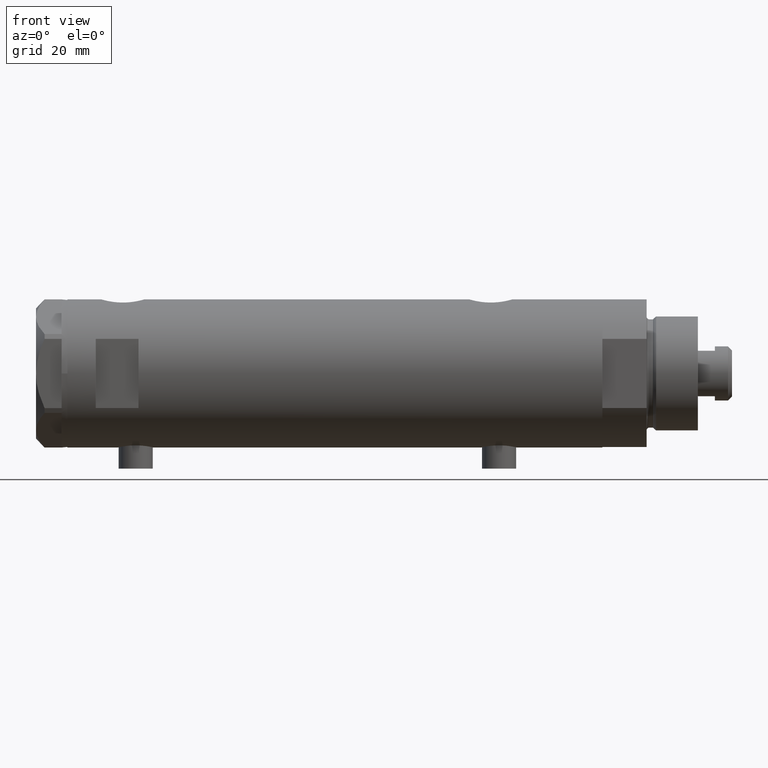
[diagram: clean part render]
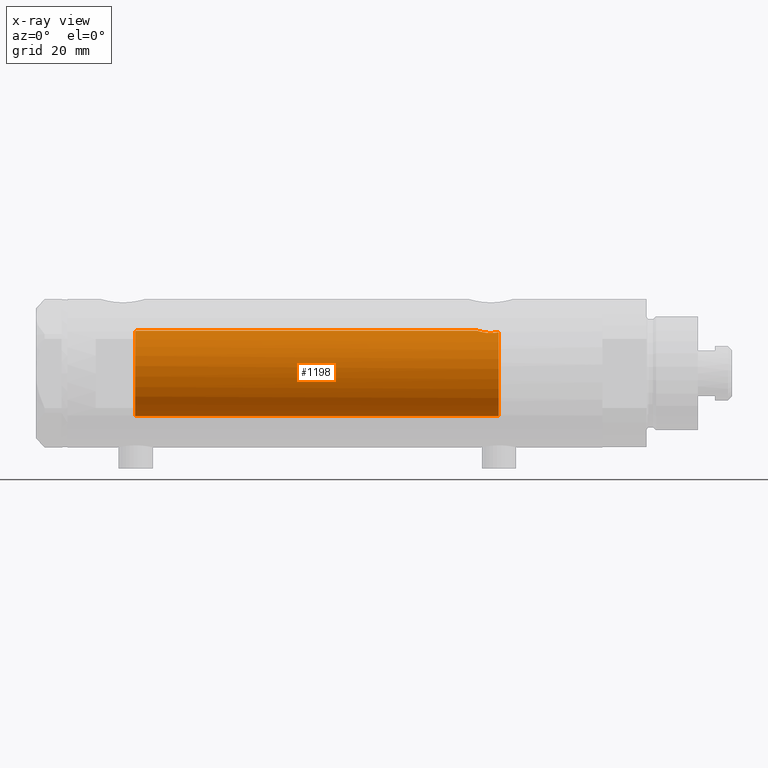
[diagram: x-ray — body ghosted, one internal face saturated and labeled with its STEP entity id]
A machine part, front view, then the same camera in x-ray: the body is ghosted and one INTERNAL B-rep face — a face not visible from any outside direction — is saturated and labeled: STEP entity #1198.
In plain terms, the highlighted cylindrical surface (partial cylindrical patch) has radius 15 mm, axis along (1, 0, -0).
Its self-contained STEP definition (entity closure, byte-faithful):
#9 = CARTESIAN_POINT ( 'NONE',  ( 14.87720562886504183, -1.924385875533404233, 69.97741675737690059 ) ) ;
#35 = DIRECTION ( 'NONE',  ( 0.000000000000000000, 0.000000000000000000, 1.000000000000000000 ) ) ;
#63 = CARTESIAN_POINT ( 'NONE',  ( 14.92029983160078643, -1.555365312915180542, 69.83609703141415537 ) ) ;
#117 = ORIENTED_EDGE ( 'NONE', *, *, #3704, .F. ) ;
#128 = CARTESIAN_POINT ( 'NONE',  ( 14.39424372609267877, -4.221002267729138779, -57.17893131093290293 ) ) ;
#153 = CARTESIAN_POINT ( 'NONE',  ( 14.19797987272029438, -4.839174951492910104, -55.29741451501411831 ) ) ;
#195 = CARTESIAN_POINT ( 'NONE',  ( 14.23846660849503465, -4.718934182878722794, -55.95401121469808459 ) ) ;
#211 = CARTESIAN_POINT ( 'NONE',  ( 0.000000000000000000, 0.000000000000000000, 93.95000000000001705 ) ) ;
#214 = CARTESIAN_POINT ( 'NONE',  ( 14.18786347641749757, -4.868757996482117711, -54.63322300400292875 ) ) ;
#332 = CARTESIAN_POINT ( 'NONE',  ( 14.82638779339053947, -2.275571356824482638, 70.15000000000000568 ) ) ;
#431 = CARTESIAN_POINT ( 'NONE',  ( 15.00000000000000000, 0.000000000000000000, 69.58500000000000796 ) ) ;
#590 = CARTESIAN_POINT ( 'NONE',  ( 14.19858338301463441, -4.837406781463696070, -54.18614104090499239 ) ) ;
#595 = AXIS2_PLACEMENT_3D ( 'NONE', #2545, #4397, #3264 ) ;
#747 = AXIS2_PLACEMENT_3D ( 'NONE', #3771, #35, #2233 ) ;
#871 = CARTESIAN_POINT ( 'NONE',  ( 14.72015646623405871, -2.909233045280601893, -50.82572079632731743 ) ) ;
#874 = B_SPLINE_CURVE_WITH_KNOTS ( 'NONE', 3,
 ( #431, #1474, #3373, #2963, #63, #9, #2938, #332 ),
 .UNSPECIFIED., .F., .F.,
 ( 4, 2, 2, 4 ),
 ( 0.000000000000000000, 0.001182100180564259889, 0.001773150270846394604, 0.002364200361128529319 ),
 .UNSPECIFIED. ) ;
#915 = CARTESIAN_POINT ( 'NONE',  ( 14.64727859494137263, -3.248701865452407578, -51.10174013696655493 ) ) ;
#962 = CARTESIAN_POINT ( 'NONE',  ( 14.20926245015526135, -4.806160851464706063, -53.96377327795616452 ) ) ;
#1042 = CARTESIAN_POINT ( 'NONE',  ( 15.00000000000000000, 1.836970198721029589E-15, 93.95000000000001705 ) ) ;
#1154 = CIRCLE ( 'NONE', #595, 15.00000000000000000 ) ;
#1198 = ADVANCED_FACE ( 'NONE', ( #4687 ), #3572, .F. ) ;
#1289 = CARTESIAN_POINT ( 'NONE',  ( 14.96064712090283777, -1.106639041422191827, -50.00738179736369915 ) ) ;
#1423 = DIRECTION ( 'NONE',  ( -0.000000000000000000, -0.000000000000000000, -1.000000000000000000 ) ) ;
#1467 = B_SPLINE_CURVE_WITH_KNOTS ( 'NONE', 3,
 ( #3932, #2401, #128, #4668, #3552, #1685, #195, #4320, #153, #2005, #214, #590, #962, #1726, #3140, #1637, #4648, #4232, #4274, #915, #871, #2813, #2060, #3860, #3212, #1289, #2470, #2794, #3118, #2428 ),
 .UNSPECIFIED., .F., .F.,
 ( 4, 2, 2, 2, 2, 2, 2, 2, 2, 2, 2, 2, 2, 2, 4 ),
 ( 0.004672505804584289359, 0.005337629501999303222, 0.006002753199414317953, 0.006667876896829330949, 0.007333000594244345680, 0.007998124291659358676, 0.008663247989074373406, 0.009328371686489388137, 0.009993495383904402868, 0.01132374277873441151, 0.01265399017356442016, 0.01331911387097942448, 0.01398423756839442880, 0.01464936126580943312, 0.01531448496322443745 ),
 .UNSPECIFIED. ) ;
#1474 = CARTESIAN_POINT ( 'NONE',  ( 15.00000000000000178, -0.3999014018875933218, 69.58499999999999375 ) ) ;
#1599 = EDGE_CURVE ( 'NONE', #4465, #2008, #1154, .T. ) ;
#1637 = CARTESIAN_POINT ( 'NONE',  ( 14.30772250772359833, -4.505024017690383076, -52.90010806953220879 ) ) ;
#1685 = CARTESIAN_POINT ( 'NONE',  ( 14.25856516724843992, -4.658255869285516937, -56.17044016644937443 ) ) ;
#1723 = DIRECTION ( 'NONE',  ( -0.000000000000000000, -0.000000000000000000, -1.000000000000000000 ) ) ;
#1726 = CARTESIAN_POINT ( 'NONE',  ( 14.23984499268011028, -4.714778477509579346, -53.53008258614766390 ) ) ;
#1859 = VERTEX_POINT ( 'NONE', #3139 ) ;
#2005 = CARTESIAN_POINT ( 'NONE',  ( 14.18781489734108270, -4.868896704194245473, -54.85545969036063241 ) ) ;
#2007 = ORIENTED_EDGE ( 'NONE', *, *, #2461, .T. ) ;
#2008 = VERTEX_POINT ( 'NONE', #4764 ) ;
#2060 = CARTESIAN_POINT ( 'NONE',  ( 14.84733308118440220, -2.144376633039216440, -50.37751912952715116 ) ) ;
#2063 = EDGE_CURVE ( 'NONE', #3733, #2008, #3551, .T. ) ;
#2233 = DIRECTION ( 'NONE',  ( 1.000000000000000000, 0.000000000000000000, 0.000000000000000000 ) ) ;
#2401 = CARTESIAN_POINT ( 'NONE',  ( 14.42775250319760083, -4.105775281508734054, -57.36911445102909113 ) ) ;
#2428 = CARTESIAN_POINT ( 'NONE',  ( 15.00000000000000000, 5.959273468635536151E-16, -49.88499999999999801 ) ) ;
#2461 = EDGE_CURVE ( 'NONE', #3733, #3594, #4364, .T. ) ;
#2470 = CARTESIAN_POINT ( 'NONE',  ( 14.97537530859971966, -0.8874117095427771496, -49.96137464055829014 ) ) ;
#2517 = CARTESIAN_POINT ( 'NONE',  ( -15.00000000000000000, 0.000000000000000000, 93.95000000000001705 ) ) ;
#2545 = CARTESIAN_POINT ( 'NONE',  ( 0.000000000000000000, 0.000000000000000000, -57.55000000000000426 ) ) ;
#2794 = CARTESIAN_POINT ( 'NONE',  ( 14.99508877558421993, -0.4434836953032583184, -49.90007684727662252 ) ) ;
#2813 = CARTESIAN_POINT ( 'NONE',  ( 14.81710879718117546, -2.343063746046468054, -50.48067662538952050 ) ) ;
#2938 = CARTESIAN_POINT ( 'NONE',  ( 14.85289483991917692, -2.102865829523694607, 70.05860377881609224 ) ) ;
#2963 = CARTESIAN_POINT ( 'NONE',  ( 14.93900636919599556, -1.364886281976674942, 69.77622504971313333 ) ) ;
#3107 = VECTOR ( 'NONE', #3931, 1000.000000000000000 ) ;
#3118 = CARTESIAN_POINT ( 'NONE',  ( 15.00000000000000000, -0.2216692655473431750, -49.88499999999999091 ) ) ;
#3139 = CARTESIAN_POINT ( 'NONE',  ( 15.00000000000000000, 5.959273468635536151E-16, -49.88499999999999801 ) ) ;
#3140 = CARTESIAN_POINT ( 'NONE',  ( 14.25977760983849052, -4.654557688538888627, -53.31736805897653397 ) ) ;
#3197 = ORIENTED_EDGE ( 'NONE', *, *, #1599, .T. ) ;
#3210 = DIRECTION ( 'NONE',  ( -1.000000000000000000, 0.000000000000000000, 0.000000000000000000 ) ) ;
#3212 = CARTESIAN_POINT ( 'NONE',  ( 14.92307637240703677, -1.532123959568890026, -50.12726557582075770 ) ) ;
#3264 = DIRECTION ( 'NONE',  ( -1.000000000000000000, 0.000000000000000000, 0.000000000000000000 ) ) ;
#3270 = ORIENTED_EDGE ( 'NONE', *, *, #3917, .F. ) ;
#3373 = CARTESIAN_POINT ( 'NONE',  ( 14.98404828787190901, -0.7909490205761857684, 69.63356230794191504 ) ) ;
#3389 = CARTESIAN_POINT ( 'NONE',  ( 15.00000000000000000, 0.000000000000000000, 69.58500000000000796 ) ) ;
#3439 = VECTOR ( 'NONE', #1423, 1000.000000000000000 ) ;
#3551 = LINE ( 'NONE', #2517, #3107 ) ;
#3552 = CARTESIAN_POINT ( 'NONE',  ( 14.30602371879161439, -4.510400617436904014, -56.58665028800271557 ) ) ;
#3572 = CYLINDRICAL_SURFACE ( 'NONE', #4829, 15.00000000000000000 ) ;
#3594 = VERTEX_POINT ( 'NONE', #4416 ) ;
#3626 = VERTEX_POINT ( 'NONE', #3389 ) ;
#3635 = EDGE_LOOP ( 'NONE', ( #3270, #4752, #117, #3197, #4430, #2007 ) ) ;
#3704 = EDGE_CURVE ( 'NONE', #4465, #1859, #1467, .T. ) ;
#3733 = VERTEX_POINT ( 'NONE', #4300 ) ;
#3771 = CARTESIAN_POINT ( 'NONE',  ( 0.000000000000000000, 0.000000000000000000, 70.15000000000000568 ) ) ;
#3860 = CARTESIAN_POINT ( 'NONE',  ( 14.90017778876744892, -1.739641523727902372, -50.20130925695124802 ) ) ;
#3917 = EDGE_CURVE ( 'NONE', #3626, #3594, #874, .T. ) ;
#3931 = DIRECTION ( 'NONE',  ( -0.000000000000000000, -0.000000000000000000, -1.000000000000000000 ) ) ;
#3932 = CARTESIAN_POINT ( 'NONE',  ( 14.46277203719950855, -3.978470183374506863, -57.55000000000000426 ) ) ;
#4232 = CARTESIAN_POINT ( 'NONE',  ( 14.42796883436190214, -4.108435602805831088, -52.10726922759030799 ) ) ;
#4274 = CARTESIAN_POINT ( 'NONE',  ( 14.49994286062941562, -3.853373987417223479, -51.74743896782911889 ) ) ;
#4300 = CARTESIAN_POINT ( 'NONE',  ( -15.00000000000000000, 0.000000000000000000, 70.15000000000000568 ) ) ;
#4320 = CARTESIAN_POINT ( 'NONE',  ( 14.20819413761015504, -4.809312895991456394, -55.51713251522167525 ) ) ;
#4364 = CIRCLE ( 'NONE', #747, 15.00000000000000000 ) ;
#4397 = DIRECTION ( 'NONE',  ( 0.000000000000000000, 0.000000000000000000, -1.000000000000000000 ) ) ;
#4416 = CARTESIAN_POINT ( 'NONE',  ( 14.82638779339053947, -2.275571356824482638, 70.15000000000000568 ) ) ;
#4430 = ORIENTED_EDGE ( 'NONE', *, *, #2063, .F. ) ;
#4438 = LINE ( 'NONE', #1042, #3439 ) ;
#4465 = VERTEX_POINT ( 'NONE', #4710 ) ;
#4586 = EDGE_CURVE ( 'NONE', #3626, #1859, #4438, .T. ) ;
#4648 = CARTESIAN_POINT ( 'NONE',  ( 14.33594561531104006, -4.414979644548145288, -52.69453393419243525 ) ) ;
#4668 = CARTESIAN_POINT ( 'NONE',  ( 14.33349657381506681, -4.422893686125041413, -56.78827841538883803 ) ) ;
#4687 = FACE_OUTER_BOUND ( 'NONE', #3635, .T. ) ;
#4710 = CARTESIAN_POINT ( 'NONE',  ( 14.46277203719950855, -3.978470183374506863, -57.55000000000000426 ) ) ;
#4752 = ORIENTED_EDGE ( 'NONE', *, *, #4586, .T. ) ;
#4764 = CARTESIAN_POINT ( 'NONE',  ( -15.00000000000000000, 0.000000000000000000, -57.55000000000000426 ) ) ;
#4829 = AXIS2_PLACEMENT_3D ( 'NONE', #211, #1723, #3210 ) ;